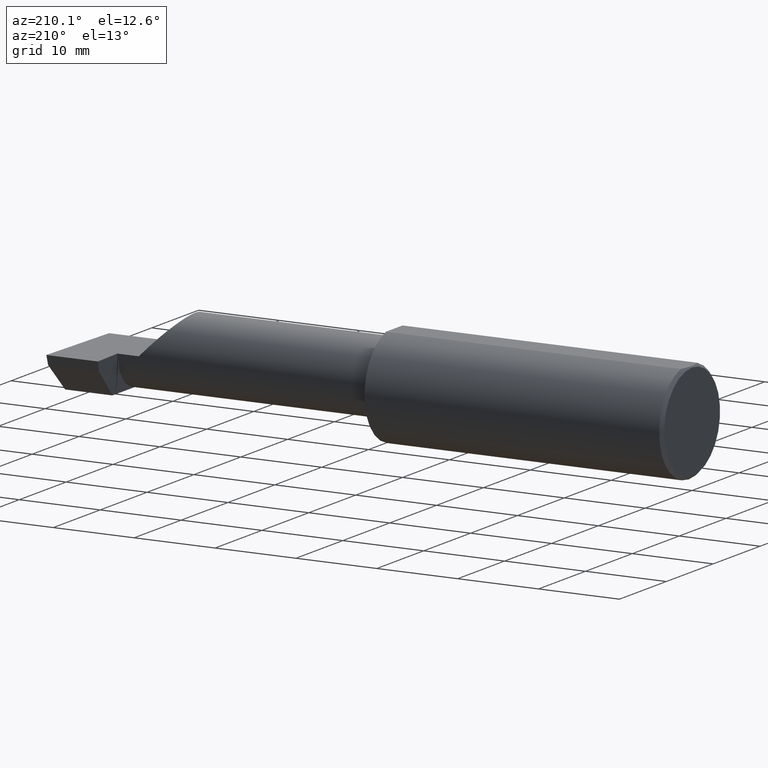
[diagram: clean part render]
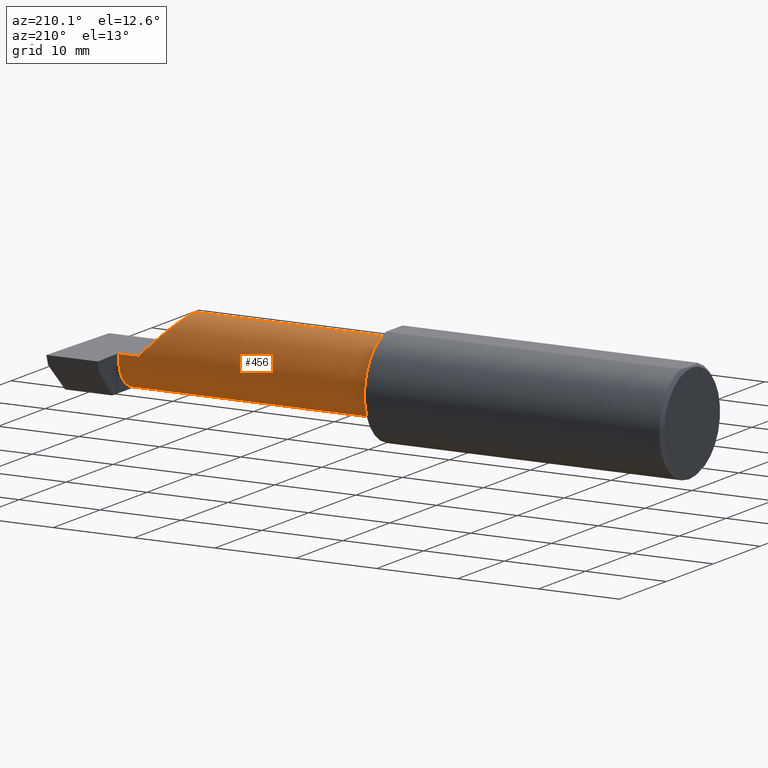
[diagram: same view with one face highlighted and labeled with its STEP entity id]
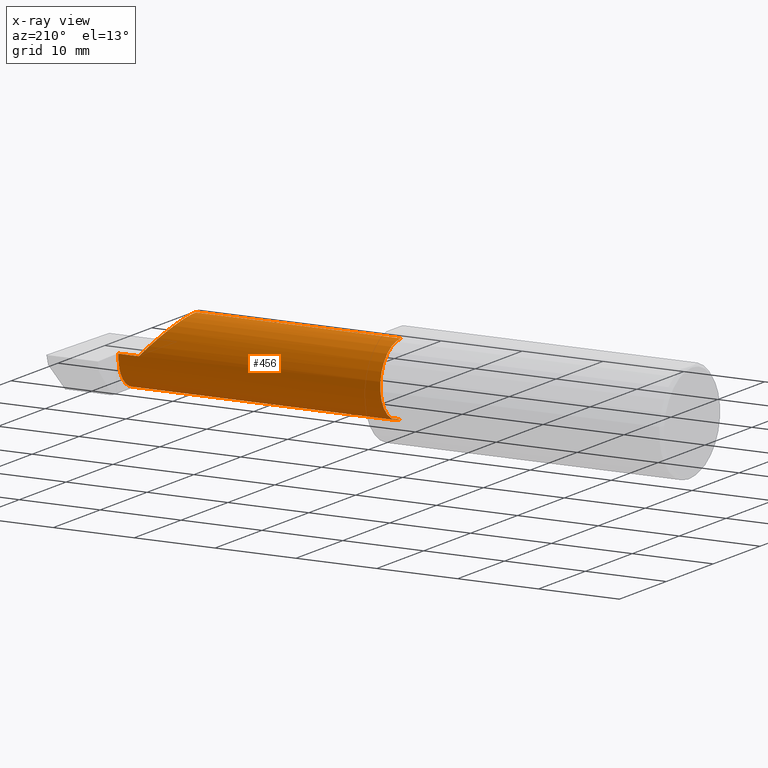
[diagram: x-ray of the same camera — body ghosted, the highlighted face saturated]
A machine part, auxiliary view. The second image highlights one B-rep face of the part: STEP entity #456.
The next image is the same camera in x-ray: the body ghosted, the highlighted face saturated — about 0% of this face is hidden behind the body in this view.
In plain terms, the highlighted cylindrical surface (partial cylindrical patch) has radius 4.445 mm, axis along (-1, -0, -0).
Its self-contained STEP definition (entity closure, byte-faithful):
#6 = CARTESIAN_POINT ( 'NONE',  ( 2.650000000000000355, 0.07414999999999997982, 4.286263797015727350E-17 ) ) ;
#26 = DIRECTION ( 'NONE',  ( 0.000000000000000000, 0.000000000000000000, 1.000000000000000000 ) ) ;
#28 = VERTEX_POINT ( 'NONE', #771 ) ;
#67 = VERTEX_POINT ( 'NONE', #413 ) ;
#77 = AXIS2_PLACEMENT_3D ( 'NONE', #412, #652, #26 ) ;
#88 = ORIENTED_EDGE ( 'NONE', *, *, #295, .F. ) ;
#101 = AXIS2_PLACEMENT_3D ( 'NONE', #263, #676, #682 ) ;
#106 = VERTEX_POINT ( 'NONE', #128 ) ;
#114 = AXIS2_PLACEMENT_3D ( 'NONE', #726, #182, #424 ) ;
#128 = CARTESIAN_POINT ( 'NONE',  ( 1.474999999999999867, -0.1008499999999999674, 0.1749999999999999889 ) ) ;
#131 = CARTESIAN_POINT ( 'NONE',  ( 2.756564601548836535, 0.04629714416892562884, -0.1252712066320194051 ) ) ;
#132 =( BOUNDED_CURVE ( )  B_SPLINE_CURVE ( 3, ( #380, #319, #145, #628 ),
 .UNSPECIFIED., .F., .T. ) 
 B_SPLINE_CURVE_WITH_KNOTS ( ( 4, 4 ),
 ( 4.443983221546778495, 4.709965478757016655 ),
 .UNSPECIFIED. ) 
 CURVE ( )  GEOMETRIC_REPRESENTATION_ITEM ( )  RATIONAL_B_SPLINE_CURVE ( ( 1.000000000000000000, 0.9941131374841131185, 0.9941131374841131185, 1.000000000000000000 ) ) 
 REPRESENTATION_ITEM ( '' )  );
#143 = ORIENTED_EDGE ( 'NONE', *, *, #282, .T. ) ;
#145 = CARTESIAN_POINT ( 'NONE',  ( 2.749689495973013820, 0.07413112468343002748, -0.01577237022675150729 ) ) ;
#156 = VERTEX_POINT ( 'NONE', #659 ) ;
#177 = EDGE_CURVE ( 'NONE', #625, #156, #595, .T. ) ;
#182 = DIRECTION ( 'NONE',  ( -1.000000000000000000, -0.000000000000000000, -0.000000000000000000 ) ) ;
#190 = LINE ( 'NONE', #672, #333 ) ;
#194 = CARTESIAN_POINT ( 'NONE',  ( 2.475000000000001421, -0.1008499999999999674, 0.1749999999999999889 ) ) ;
#197 = ORIENTED_EDGE ( 'NONE', *, *, #238, .T. ) ;
#202 = EDGE_LOOP ( 'NONE', ( #476, #197, #532, #88, #143, #212, #750, #444 ) ) ;
#212 = ORIENTED_EDGE ( 'NONE', *, *, #751, .T. ) ;
#238 = EDGE_CURVE ( 'NONE', #67, #467, #190, .T. ) ;
#248 =( BOUNDED_CURVE ( )  B_SPLINE_CURVE ( 3, ( #688, #509, #131, #497 ),
 .UNSPECIFIED., .F., .T. ) 
 B_SPLINE_CURVE_WITH_KNOTS ( ( 4, 4 ),
 ( 3.140373936913444908, 4.443983221546777607 ),
 .UNSPECIFIED. ) 
 CURVE ( )  GEOMETRIC_REPRESENTATION_ITEM ( )  RATIONAL_B_SPLINE_CURVE ( ( 1.000000000000000000, 0.8633269052189371795, 0.8633269052189371795, 1.000000000000000000 ) ) 
 REPRESENTATION_ITEM ( '' )  );
#251 = EDGE_CURVE ( 'NONE', #67, #584, #248, .T. ) ;
#259 = EDGE_CURVE ( 'NONE', #584, #156, #132, .T. ) ;
#261 = CARTESIAN_POINT ( 'NONE',  ( 1.450000000000000178, -0.1008499999999999674, 0.1749999999999999889 ) ) ;
#263 = CARTESIAN_POINT ( 'NONE',  ( 1.474999999999999867, -0.1008499999999999674, 0.000000000000000000 ) ) ;
#282 = EDGE_CURVE ( 'NONE', #28, #325, #706, .T. ) ;
#295 = EDGE_CURVE ( 'NONE', #28, #106, #566, .T. ) ;
#319 = CARTESIAN_POINT ( 'NONE',  ( 2.750372681961405164, 0.07204909126152565790, -0.03119400421533637113 ) ) ;
#325 = VERTEX_POINT ( 'NONE', #749 ) ;
#330 = DIRECTION ( 'NONE',  ( -1.000000000000000000, -0.000000000000000000, -0.000000000000000000 ) ) ;
#333 = VECTOR ( 'NONE', #330, 39.37007874015748143 ) ;
#376 = DIRECTION ( 'NONE',  ( 1.000000000000000000, 0.000000000000000000, 0.000000000000000000 ) ) ;
#380 = CARTESIAN_POINT ( 'NONE',  ( 2.751037492458068279, 0.06794054266098323303, -0.04620338416404774079 ) ) ;
#412 = CARTESIAN_POINT ( 'NONE',  ( 1.450000000000000178, -0.1008499999999999674, 0.000000000000000000 ) ) ;
#413 = CARTESIAN_POINT ( 'NONE',  ( 2.760029432995153353, -0.1008500000000000091, -0.1749999999999999889 ) ) ;
#424 = DIRECTION ( 'NONE',  ( 0.000000000000000000, 0.000000000000000000, 1.000000000000000000 ) ) ;
#427 = VECTOR ( 'NONE', #376, 39.37007874015748143 ) ;
#435 = CARTESIAN_POINT ( 'NONE',  ( 2.475000000000001421, 0.001662626584708371512, 0.1749999999999999889 ) ) ;
#444 = ORIENTED_EDGE ( 'NONE', *, *, #259, .F. ) ;
#456 = ADVANCED_FACE ( 'NONE', ( #475 ), #460, .T. ) ;
#460 = CYLINDRICAL_SURFACE ( 'NONE', #77, 0.1749999999999999889 ) ;
#467 = VERTEX_POINT ( 'NONE', #770 ) ;
#475 = FACE_OUTER_BOUND ( 'NONE', #202, .T. ) ;
#476 = ORIENTED_EDGE ( 'NONE', *, *, #251, .F. ) ;
#497 = CARTESIAN_POINT ( 'NONE',  ( 2.751037492458068279, 0.06794054266098323303, -0.04620338416404774079 ) ) ;
#509 = CARTESIAN_POINT ( 'NONE',  ( 2.760036419112081862, -0.01887343476265498227, -0.1750000000000000444 ) ) ;
#532 = ORIENTED_EDGE ( 'NONE', *, *, #762, .F. ) ;
#550 = LINE ( 'NONE', #612, #427 ) ;
#554 = DIRECTION ( 'NONE',  ( -1.000000000000000000, -0.000000000000000000, -0.000000000000000000 ) ) ;
#561 = CARTESIAN_POINT ( 'NONE',  ( 2.547487373415292744, 0.07414999999999996594, 0.1025126265847083745 ) ) ;
#566 = LINE ( 'NONE', #261, #678 ) ;
#584 = VERTEX_POINT ( 'NONE', #721 ) ;
#595 = CIRCLE ( 'NONE', #114, 0.1749999999999999889 ) ;
#612 = CARTESIAN_POINT ( 'NONE',  ( 1.450000000000000178, 0.07414999999999997982, 1.898202538678394254E-16 ) ) ;
#625 = VERTEX_POINT ( 'NONE', #778 ) ;
#628 = CARTESIAN_POINT ( 'NONE',  ( 2.749000000000000110, 0.07414987299205305638, -0.0002108382441793307837 ) ) ;
#652 = DIRECTION ( 'NONE',  ( -1.000000000000000000, -0.000000000000000000, -0.000000000000000000 ) ) ;
#659 = CARTESIAN_POINT ( 'NONE',  ( 2.749000000000000110, 0.07414987299205305638, -0.0002108382441793307837 ) ) ;
#672 = CARTESIAN_POINT ( 'NONE',  ( 1.450000000000000178, -0.1008499999999999536, -0.1749999999999999889 ) ) ;
#676 = DIRECTION ( 'NONE',  ( -1.000000000000000000, -0.000000000000000000, -0.000000000000000000 ) ) ;
#678 = VECTOR ( 'NONE', #554, 39.37007874015748143 ) ;
#682 = DIRECTION ( 'NONE',  ( 0.000000000000000000, 0.000000000000000000, 1.000000000000000000 ) ) ;
#688 = CARTESIAN_POINT ( 'NONE',  ( 2.760029432995153353, -0.1008500000000000091, -0.1749999999999999889 ) ) ;
#706 =( BOUNDED_CURVE ( )  B_SPLINE_CURVE ( 3, ( #194, #435, #561, #6 ),
 .UNSPECIFIED., .F., .T. ) 
 B_SPLINE_CURVE_WITH_KNOTS ( ( 4, 4 ),
 ( 0.000000000000000000, 1.570796326794896558 ),
 .UNSPECIFIED. ) 
 CURVE ( )  GEOMETRIC_REPRESENTATION_ITEM ( )  RATIONAL_B_SPLINE_CURVE ( ( 1.000000000000000000, 0.8047378541243649375, 0.8047378541243649375, 1.000000000000000000 ) ) 
 REPRESENTATION_ITEM ( '' )  );
#721 = CARTESIAN_POINT ( 'NONE',  ( 2.751037492458068279, 0.06794054266098323303, -0.04620338416404774079 ) ) ;
#726 = CARTESIAN_POINT ( 'NONE',  ( 2.749000000000000110, -0.1008499999999999674, 0.000000000000000000 ) ) ;
#746 = CIRCLE ( 'NONE', #101, 0.1749999999999999889 ) ;
#749 = CARTESIAN_POINT ( 'NONE',  ( 2.650000000000000355, 0.07414999999999997982, 4.286263797015727350E-17 ) ) ;
#750 = ORIENTED_EDGE ( 'NONE', *, *, #177, .T. ) ;
#751 = EDGE_CURVE ( 'NONE', #325, #625, #550, .T. ) ;
#762 = EDGE_CURVE ( 'NONE', #106, #467, #746, .T. ) ;
#770 = CARTESIAN_POINT ( 'NONE',  ( 1.474999999999999867, -0.1008499999999999536, -0.1749999999999999889 ) ) ;
#771 = CARTESIAN_POINT ( 'NONE',  ( 2.475000000000001421, -0.1008499999999999674, 0.1749999999999999889 ) ) ;
#778 = CARTESIAN_POINT ( 'NONE',  ( 2.749000000000000110, 0.07414999999999996594, 1.898206034632287338E-16 ) ) ;